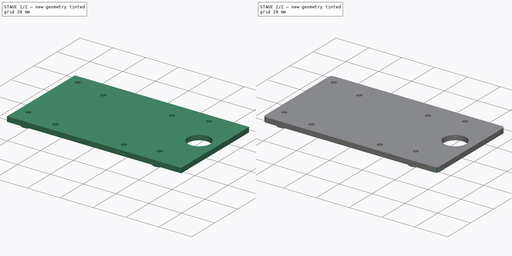
[diagram: build sequence overview — one tinted view per stage of 2, left to right]
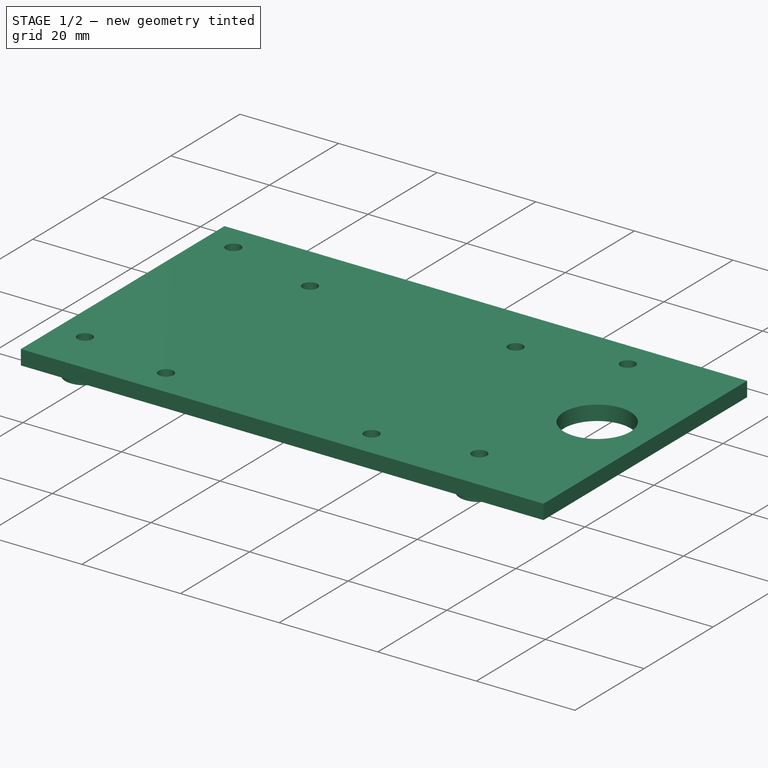
[diagram: stage 1 of 2 — iso view after this stage's code; geometry added in this stage tinted green]
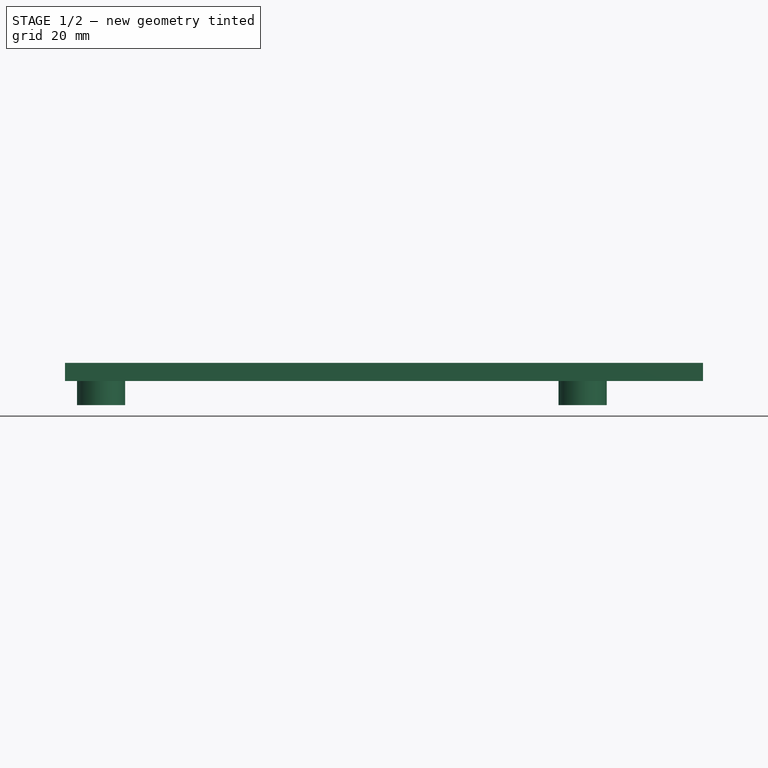
[diagram: stage 1 of 2 — front view after this stage's code; geometry added in this stage tinted green]
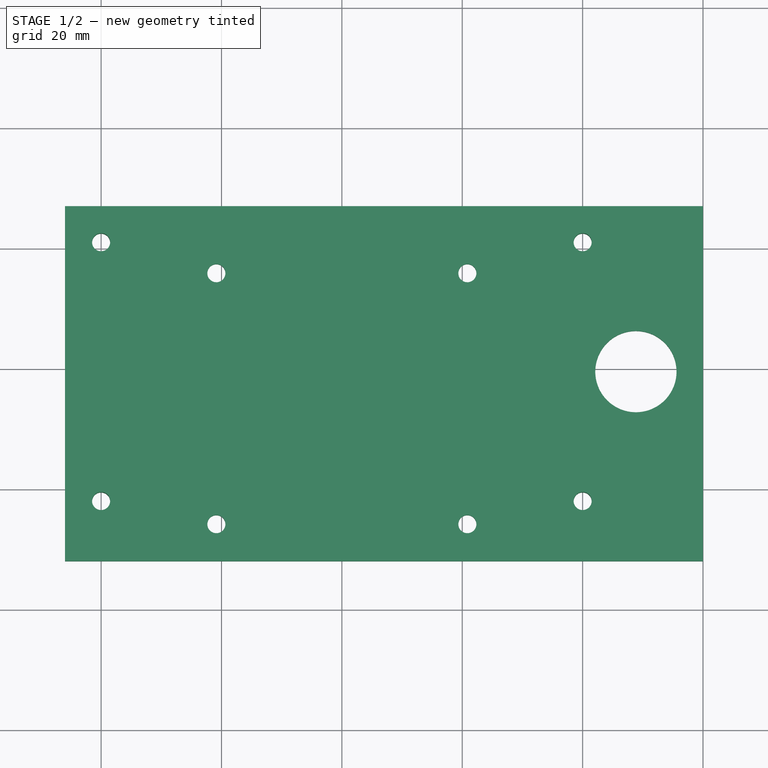
[diagram: stage 1 of 2 — top view after this stage's code; geometry added in this stage tinted green]
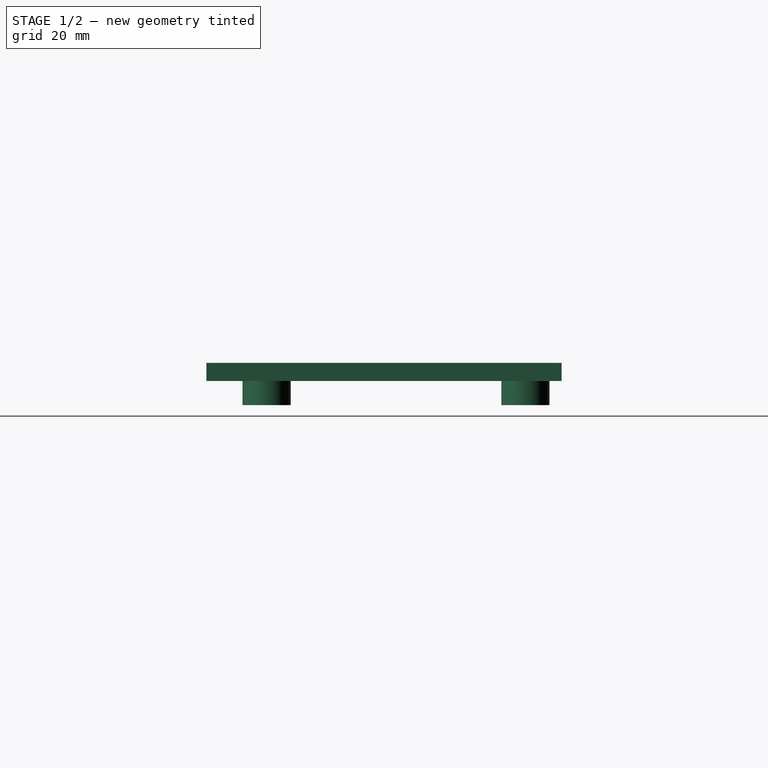
[diagram: stage 1 of 2 — right view after this stage's code; geometry added in this stage tinted green]
FCSTD DOCUMENT  (FreeCAD 1.0R39319 (Git))
Label: LidarPlate
License: All rights reserved
LicenseURL: https://en.wikipedia.org/wiki/All_rights_reserved
objects: Sketcher::SketchObject×2, PartDesign::Pad×2, PartDesign::SubShapeBinder×1, PartDesign::Fillet×1, PartDesign::Body×1, App::Part×1
note: 15 computed .brp shape members not serialized (recipe doc carries the construction recipe); baked Part::Feature solids carry a one-line shape summary decoded from their .brp
EXTERNAL_REF file=Chassis.FCStd obj=Part

FEATURE [PartDesign::SubShapeBinder] Binder
  BindCopyOnChange = 0
  BindMode = 0
  ClaimChildren = false
  Context = -> Part [Body.Binder.]
  Fuse = false
  MakeFace = true
  OffsetFill = false
  OffsetIntersection = false
  OffsetJoinType = 0
  OffsetOpenResult = false
  PartialLoad = false
  Placement = pos=(0,135,0) rot=(0,0,1;0rad)
  Refine = true
  Relative = true
  Support = -> [<external Chassis.FCStd>#Part[Body.Sketch017.]]
  _Version = 2
FEATURE [Sketcher::SketchObject] Sketch
  ArcFitTolerance = 1e-06
  AttachmentSupport = -> [XY_Plane001]
  ExternalGeometry = -> [Binder]
  FullyConstrained = true
  MakeInternals = false
  MapMode = 5
  sketch-geometry (26):
    g0: LineSegment [constr] StartX=-46 StartY=-28 StartZ=0 EndX=46 EndY=-28 EndZ=0
    g1: LineSegment [constr] StartX=46 StartY=-28 StartZ=0 EndX=46 EndY=27 EndZ=0
    g2: LineSegment StartX=46 StartY=27 StartZ=0 EndX=-46 EndY=27 EndZ=0
    g3: LineSegment StartX=-46 StartY=27 StartZ=0 EndX=-46 EndY=-28 EndZ=0
    g4: GeomPoint [constr] X=-1e-15 Y=-0.5 Z=0
    g5: Circle CenterX=20.85 CenterY=15.85 CenterZ=0 NormalX=0 NormalY=0 NormalZ=1 AngleXU=0 Radius=1.5
    g6: Circle CenterX=-20.85 CenterY=-25.85 CenterZ=0 NormalX=0 NormalY=0 NormalZ=1 AngleXU=0 Radius=1.5
    g7: Circle CenterX=20.85 CenterY=-25.85 CenterZ=0 NormalX=0 NormalY=0 NormalZ=1 AngleXU=0 Radius=1.5
    g8: Circle CenterX=-20.85 CenterY=15.85 CenterZ=0 NormalX=0 NormalY=0 NormalZ=1 AngleXU=0 Radius=1.5
    g9: LineSegment [constr] StartX=-20.85 StartY=15.85 StartZ=0 EndX=20.85 EndY=15.85 EndZ=0
    g10: LineSegment [constr] StartX=20.85 StartY=15.85 StartZ=0 EndX=20.85 EndY=-25.85 EndZ=0
    g11: LineSegment [constr] StartX=20.85 StartY=-25.85 StartZ=0 EndX=-20.85 EndY=-25.85 EndZ=0
    g12: LineSegment [constr] StartX=-20.85 StartY=-25.85 StartZ=0 EndX=-20.85 EndY=15.85 EndZ=0
    g13: Circle CenterX=48.85 CenterY=-0.5 CenterZ=0 NormalX=0 NormalY=0 NormalZ=1 AngleXU=0 Radius=6.75
    g14: LineSegment StartX=46 StartY=27 StartZ=0 EndX=60 EndY=27 EndZ=0
    g15: LineSegment StartX=60 StartY=27 StartZ=0 EndX=60 EndY=-28 EndZ=0
    g16: LineSegment [constr] StartX=46 StartY=-28 StartZ=0 EndX=60 EndY=-28 EndZ=0
    g17: LineSegment [constr] StartX=-1e-15 StartY=-0.5 StartZ=0 EndX=60 EndY=-0.5 EndZ=0
    g18: Circle CenterX=-40 CenterY=21 CenterZ=0 NormalX=0 NormalY=0 NormalZ=1 AngleXU=0 Radius=1.5
    g19: Circle CenterX=40 CenterY=21 CenterZ=0 NormalX=0 NormalY=0 NormalZ=1 AngleXU=0 Radius=1.5
    g20: Circle CenterX=-40 CenterY=-22 CenterZ=0 NormalX=0 NormalY=0 NormalZ=1 AngleXU=0 Radius=1.5
    g21: Circle CenterX=40 CenterY=-22 CenterZ=0 NormalX=0 NormalY=0 NormalZ=1 AngleXU=0 Radius=1.5
    g22: GeomPoint X=0 Y=-5 Z=0
    g23: LineSegment StartX=-46 StartY=-28 StartZ=0 EndX=-46 EndY=-32 EndZ=0
    g24: LineSegment StartX=-46 StartY=-32 StartZ=0 EndX=60 EndY=-32 EndZ=0
    g25: LineSegment StartX=60 StartY=-28 StartZ=0 EndX=60 EndY=-32 EndZ=0
  constraints (62):
    c: Coincident(g0,g1)
    c: Coincident(g1,g2)
    c: Coincident(g2,g3)
    c: Coincident(g3,g0)
    c: Horizontal(g0)
    c: Horizontal(g2)
    c: Vertical(g1)
    c: Vertical(g3)
    c: Symmetric(g2,g0,g4)
    c: DistanceX(g0,g0) = 92
    c: DistanceY(g1,g1) = 55
    c: Diameter(g8) = 3
    c: Equal(g8,g5)
    c: Equal(g5,g6)
    c: Equal(g6,g7)
    c: Coincident(g9,g8)
    c: Coincident(g9,g5)
    c: Coincident(g10,g5)
    c: Coincident(g10,g7)
    c: Coincident(g11,g7)
    c: Coincident(g11,g6)
    c: Horizontal(g11)
    c: Coincident(g12,g6)
    c: Coincident(g12,g8)
    c: Horizontal(g9)
    c: Vertical(g10)
    c: Vertical(g12)
    c: Equal(g9,g12)
    c: DistanceX(g9,g9) = 41.7
    c: Diameter(g13) = 13.5
    c: Coincident(g14,g1)
    c: Horizontal(g14)
    c: Coincident(g15,g14)
    c: Vertical(g15)
    c: Coincident(g16,g0)
    c: Coincident(g16,g15)
    c: Horizontal(g16)
    c: DistanceX(g16,g16) = 14
    c: Coincident(g17,g4)
    c: Symmetric(g15,g15,g17)
    c: PointOnObject(g13,g17)
    c: Distance(g13,g10) = 28
    c: Diameter(g18) = 3
    c: Coincident(g18,g-3)
    c: Coincident(g19,g-4)
    c: Coincident(g20,g-5)
    c: Coincident(g21,g-6)
    c: Equal(g18,g19)
    c: Equal(g19,g20)
    c: Equal(g20,g21)
    c: Symmetric(g19,g20,g4)
    c: PointOnObject(g22,g-2)
    c: Symmetric(g6,g5,g22)
    c: DistanceY(g22,g4) = 4.5
    c: Coincident(g23,g0)
    c: Vertical(g23)
    c: Coincident(g24,g23)
    c: Coincident(g25,g15)
    c: Coincident(g25,g24)
    c: Vertical(g25)
    c: Horizontal(g24)
    c: DistanceY(g25,g25) = 4
FEATURE [PartDesign::Pad] Pad
  Direction = (0,0,1)
  Length = 3
  Length2 = 10
  Profile = -> Sketch
  ReferenceAxis = -> Sketch [N_Axis]
  Refine = true
  Suppressed = false
  Type = 0
FEATURE [Sketcher::SketchObject] Sketch001
  ArcFitTolerance = 1e-06
  AttachmentSupport = -> [Pad]
  ExternalGeometry = -> [Sketch]
  FullyConstrained = true
  MakeInternals = false
  MapMode = 5
  Placement = pos=(0,0,0) rot=(1,0,0;3.14159rad)
  sketch-geometry (8):
    g0: Circle CenterX=-40 CenterY=22 CenterZ=0 NormalX=0 NormalY=0 NormalZ=1 AngleXU=0 Radius=4
    g1: Circle CenterX=40 CenterY=22 CenterZ=0 NormalX=0 NormalY=0 NormalZ=1 AngleXU=0 Radius=4
    g2: Circle CenterX=-40 CenterY=-21 CenterZ=0 NormalX=0 NormalY=0 NormalZ=1 AngleXU=0 Radius=4
    g3: Circle CenterX=40 CenterY=-21 CenterZ=0 NormalX=0 NormalY=0 NormalZ=1 AngleXU=0 Radius=4
    g4: Circle CenterX=-40 CenterY=22 CenterZ=0 NormalX=0 NormalY=0 NormalZ=1 AngleXU=0 Radius=1.5
    g5: Circle CenterX=40 CenterY=22 CenterZ=0 NormalX=0 NormalY=0 NormalZ=1 AngleXU=0 Radius=1.5
    g6: Circle CenterX=-40 CenterY=-21 CenterZ=0 NormalX=0 NormalY=0 NormalZ=1 AngleXU=0 Radius=1.5
    g7: Circle CenterX=40 CenterY=-21 CenterZ=0 NormalX=0 NormalY=0 NormalZ=1 AngleXU=0 Radius=1.5
  constraints (16):
    c: Coincident(g0,g-3)
    c: Coincident(g1,g-4)
    c: Coincident(g2,g-5)
    c: Coincident(g3,g-6)
    c: Diameter(g0) = 8
    c: Equal(g0,g1)
    c: Equal(g1,g2)
    c: Equal(g2,g3)
    c: Coincident(g4,g0)
    c: Coincident(g5,g1)
    c: Coincident(g6,g2)
    c: Coincident(g7,g3)
    c: Equal(g-3,g4)
    c: Equal(g5,g-4)
    c: Equal(g6,g-5)
    c: Equal(g7,g-6)
FEATURE [PartDesign::Pad] Pad001
  BaseFeature = -> Pad
  Direction = (0,0,-1)
  Length = 4
  Length2 = 10
  Profile = -> Sketch001
  ReferenceAxis = -> Sketch001 [N_Axis]
  Refine = true
  Suppressed = false
  Type = 0
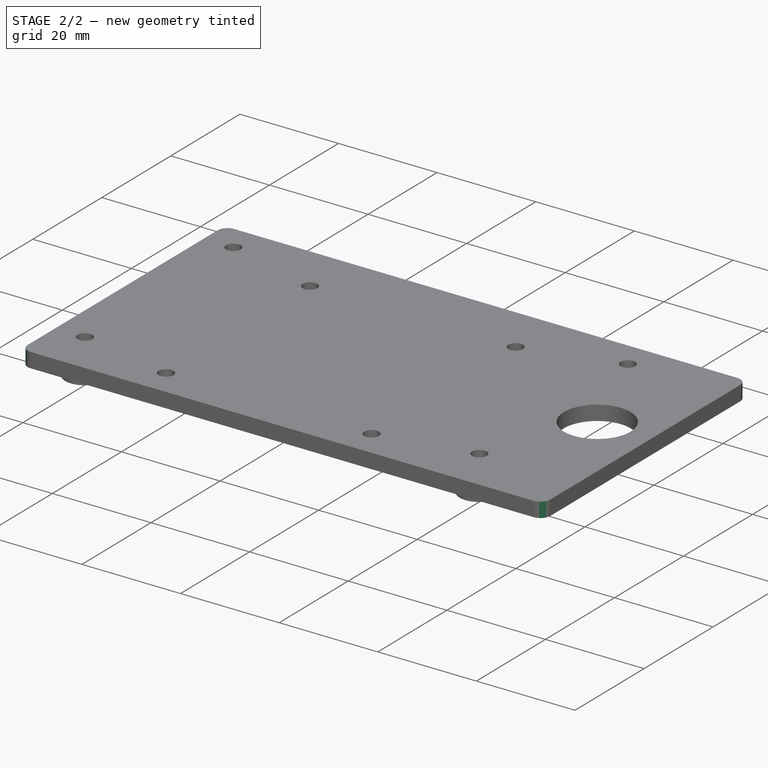
[diagram: stage 2 of 2 — iso view after this stage's code; geometry added in this stage tinted green]
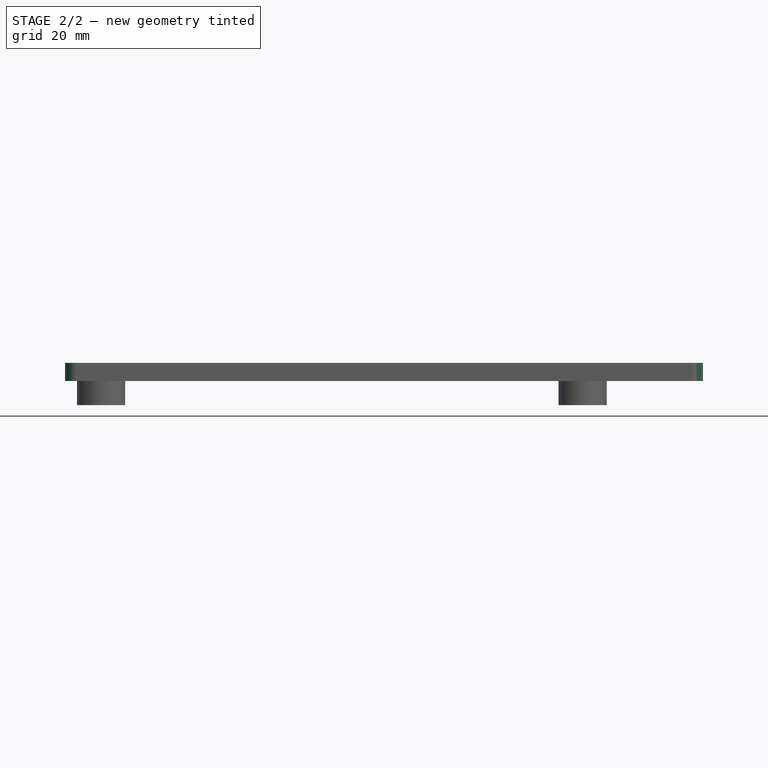
[diagram: stage 2 of 2 — front view after this stage's code; geometry added in this stage tinted green]
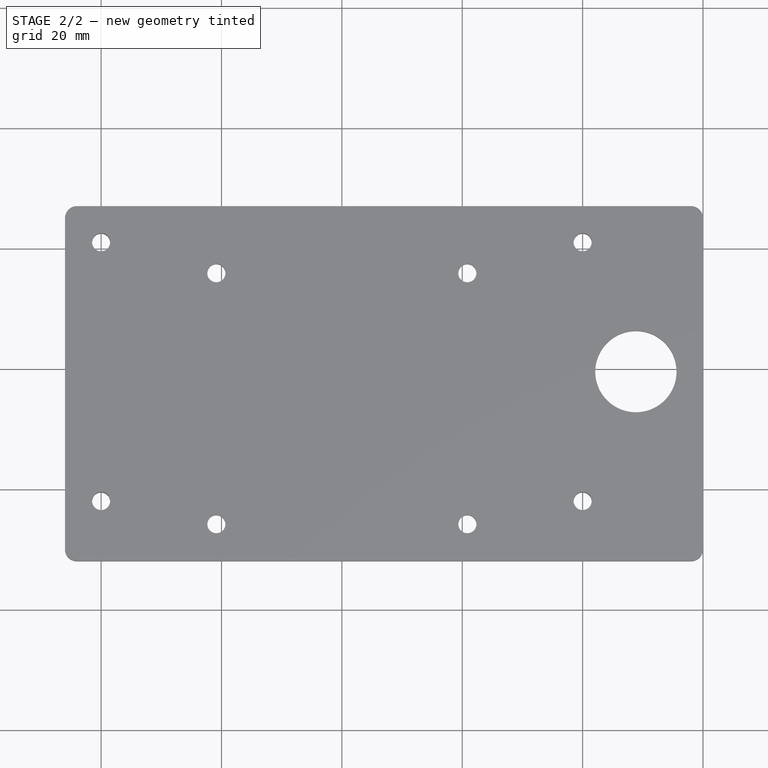
[diagram: stage 2 of 2 — top view after this stage's code; geometry added in this stage tinted green]
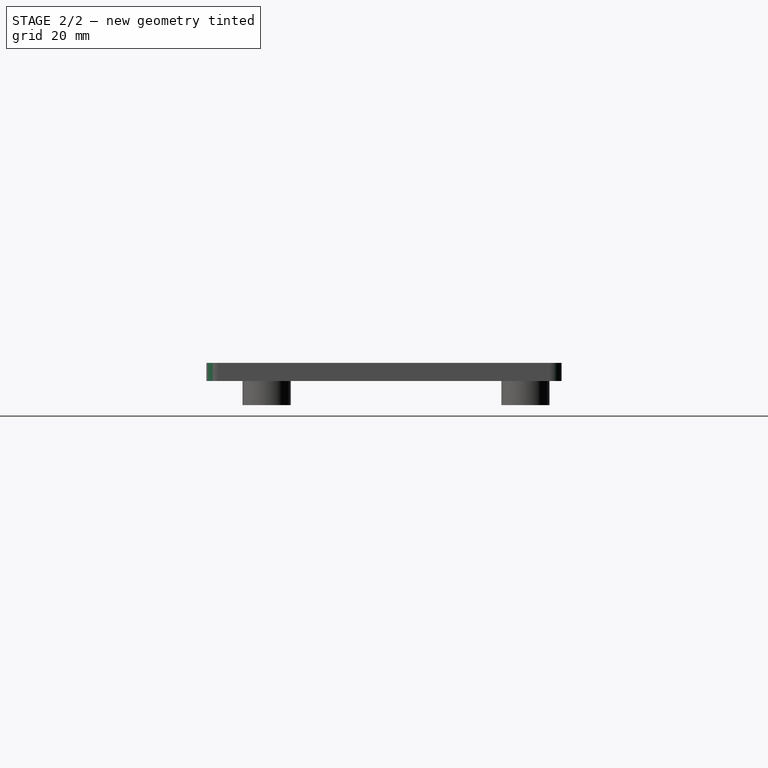
[diagram: stage 2 of 2 — right view after this stage's code; geometry added in this stage tinted green]
FEATURE [PartDesign::Fillet] Fillet
  Base = -> Pad001 [Edge5,Edge1,Edge2,Edge9]
  BaseFeature = -> Pad001
  Radius = 2
  Refine = true
  SupportTransform = false
  Suppressed = false
  UseAllEdges = false
FEATURE [PartDesign::Body] Body  label="LidarPlateBody"
  AllowCompound = false
  Group = -> [Binder,Sketch,Pad,Sketch001,Pad001,Fillet]
  Origin = -> Origin001
  Tip = -> Fillet
FEATURE [App::Part] Part  label="LidarPlatePart"
  Group = -> [Body]
  Origin = -> Origin
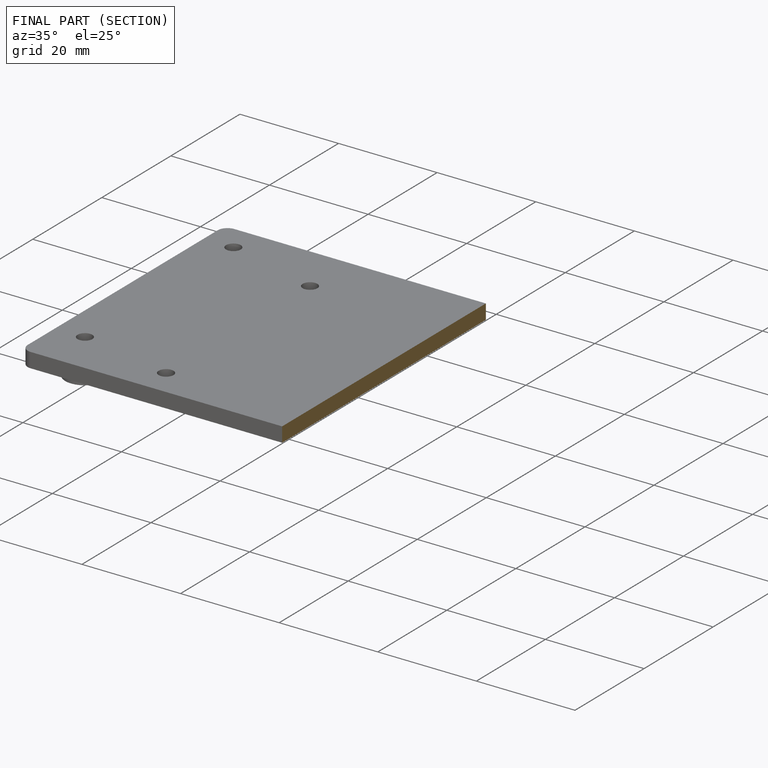
[diagram: finished part — half-section view (interior)]
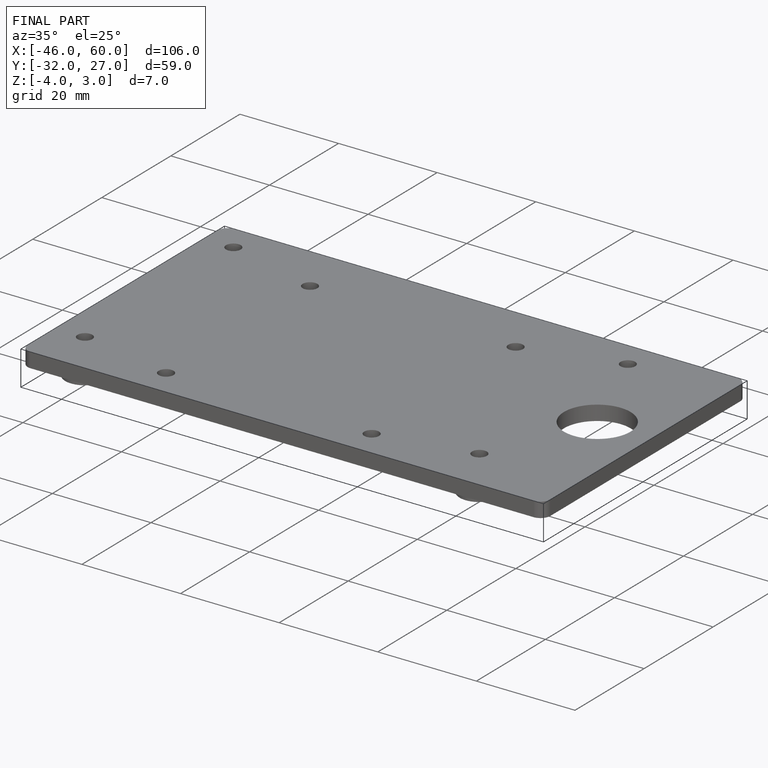
[diagram: finished part — iso view with bounding-box wireframe]
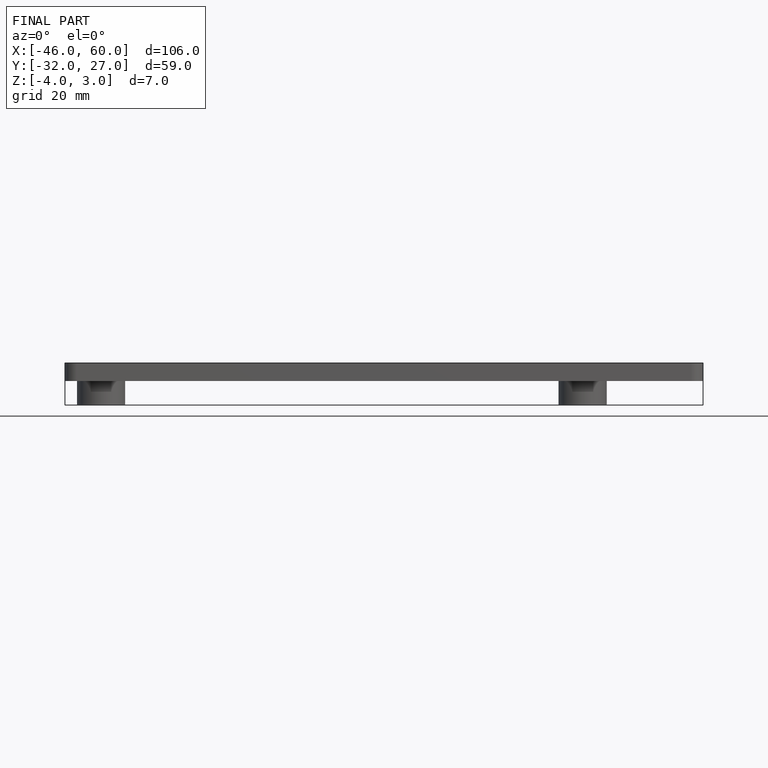
[diagram: finished part — front view with bounding-box wireframe]
